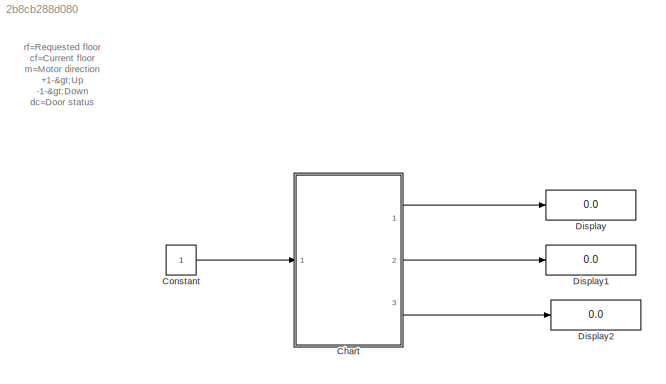
MODEL slx_2b8cb288d080
KIND model
CONFIG AbsTol = auto
CONFIG EnableMultiTasking = off
CONFIG FixedStep = auto
CONFIG MaxStep = auto
CONFIG MinStep = auto
CONFIG RelTol = 1e-3
CONFIG SampleTimeConstraint = Unconstrained
CONFIG SolverName = VariableStepAuto
CONFIG StartTime = 0.0
CONFIG StopTime = 10.0
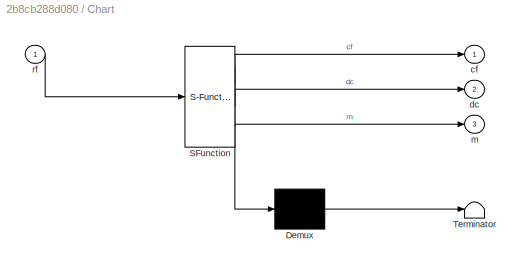
BLOCK [SubSystem] Chart
  ErrorFcn = Stateflow.Translate.translate
  PermitHierarchicalResolution = ExplicitOnly
  Ports = [1, 3]
  RequestExecContextInheritance = off
  SFBlockType = Chart
  TreatAsAtomicUnit = on
BLOCK [Demux] Chart/ Demux 
  Outputs = 1
  Ports = [1, 1]
BLOCK [S-Function] Chart/ SFunction 
  EnableBusSupport = on
  FunctionName = sf_sfun
  PortCounts = [1 4]
  Ports = [1, 4]
  SFcnIsStateOwnerBlock = off
  SFunctionDeploymentMode = off
  Tag = Stateflow S-Function 3
BLOCK [Terminator] Chart/ Terminator 
BLOCK [Outport] Chart/cf
BLOCK [Outport] Chart/dc
  Port = 2
BLOCK [Outport] Chart/m
  Port = 3
BLOCK [Inport] Chart/rf
BLOCK [Constant] Constant
BLOCK [Display] Display
  Decimation = 1
  Ports = [1]
BLOCK [Display] Display1
  Decimation = 1
  Ports = [1]
BLOCK [Display] Display2
  Decimation = 1
  Ports = [1]
ANNOTATION (root): rf=Requested floor cf=Current floor m=Motor direction +1->Up -1->Down dc=Door status +1->close 0->open
LINE Chart:1 -> Display:1
LINE Chart:2 -> Display1:1
LINE Chart:3 -> Display2:1
LINE Constant:1 -> Chart:1
CHART Chart states=7 transitions=10
  STATE_LABEL 'Elevator'
  STATE_LABEL 'Idle\nentry:m=0;\n'
  STATE_LABEL 'Door_closed\nentry:dc=1;\n'
  STATE_LABEL 'Down\nentry:m=-1;\nduring:cf=cf-1;'
  STATE_LABEL 'Up\nentry:m=1;\nduring:cf=cf+1;'
  STATE_LABEL 'Stop\nentry:m=0;dc=1;\nduring:m=0;'
  STATE_LABEL 'Door_open\nentry:dc=0;\nduring:dc=0;m=0;'
  STATE_LABEL '[rf==cf]'
  STATE_LABEL 'after(2,sec)'
  STATE_LABEL '[rf~=cf]'
  STATE_LABEL '[rf>cf]'
  STATE_LABEL '[rf<cf]'
  STATE_LABEL '[rf==cf]'
  STATE_LABEL '[rf==cf]'
  STATE_LABEL '[rf==cf]'
  STATE_LABEL 'Idle\nentry:m=0;\n'
  STATE_LABEL 'Door_closed\nentry:dc=1;\n'
  STATE_LABEL 'Down\nentry:m=-1;\nduring:cf=cf-1;'
  STATE_LABEL 'Up\nentry:m=1;\nduring:cf=cf+1;'
  STATE_LABEL 'Stop\nentry:m=0;dc=1;\nduring:m=0;'
  STATE_LABEL 'Door_open\nentry:dc=0;\nduring:dc=0;m=0;'
CHART  states=0 transitions=0
